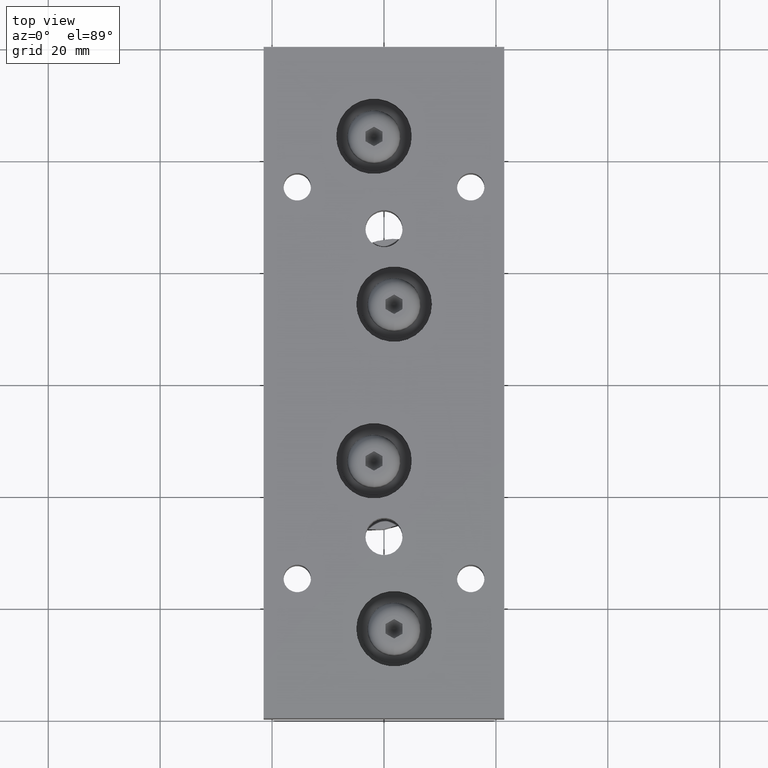
[diagram: clean part render]
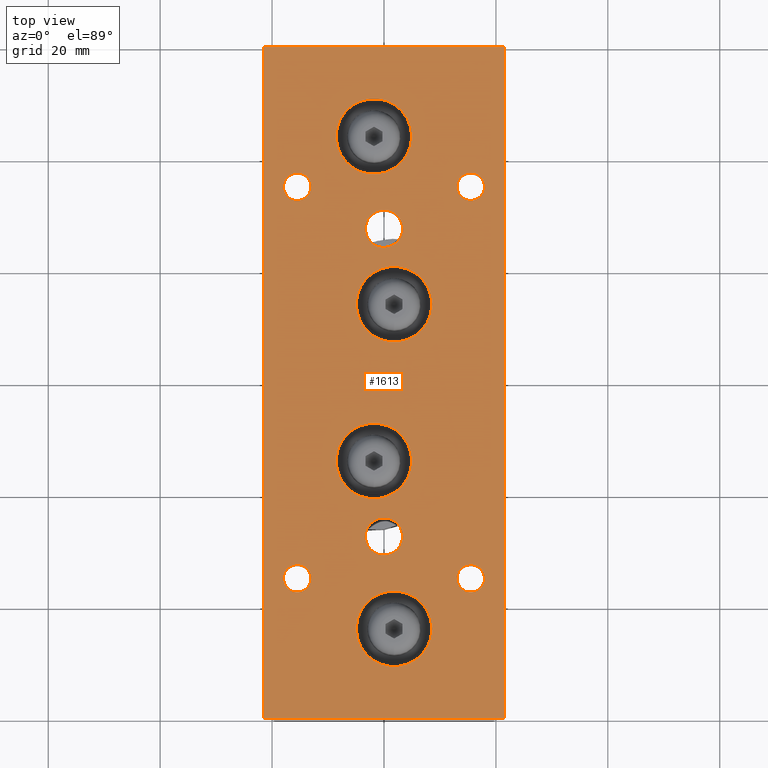
[diagram: same view with one face highlighted and labeled with its STEP entity id]
A machine part, top view. The second image highlights one B-rep face of the part: STEP entity #1613.
In plain terms, the highlighted planar face has unit normal (0, 0, 1).
Its self-contained STEP definition (entity closure, byte-faithful):
#147=LINE('',#2785,#253);
#149=LINE('',#2789,#255);
#151=LINE('',#2793,#257);
#153=LINE('',#2796,#259);
#253=VECTOR('',#2247,10.);
#255=VECTOR('',#2251,10.);
#257=VECTOR('',#2255,10.);
#259=VECTOR('',#2259,10.);
#394=FACE_BOUND('',#569,.T.);
#395=FACE_BOUND('',#570,.T.);
#396=FACE_BOUND('',#571,.T.);
#397=FACE_BOUND('',#572,.T.);
#398=FACE_BOUND('',#573,.T.);
#399=FACE_BOUND('',#574,.T.);
#400=FACE_BOUND('',#575,.T.);
#401=FACE_BOUND('',#576,.T.);
#402=FACE_BOUND('',#577,.T.);
#403=FACE_BOUND('',#578,.T.);
#451=FACE_OUTER_BOUND('',#568,.T.);
#568=EDGE_LOOP('',(#1217,#1218,#1219,#1220));
#569=EDGE_LOOP('',(#1221));
#570=EDGE_LOOP('',(#1222));
#571=EDGE_LOOP('',(#1223));
#572=EDGE_LOOP('',(#1224));
#573=EDGE_LOOP('',(#1225));
#574=EDGE_LOOP('',(#1226));
#575=EDGE_LOOP('',(#1227));
#576=EDGE_LOOP('',(#1228));
#577=EDGE_LOOP('',(#1229));
#578=EDGE_LOOP('',(#1230));
#684=CIRCLE('',#1910,6.75);
#688=CIRCLE('',#1917,6.75);
#692=CIRCLE('',#1924,6.75);
#696=CIRCLE('',#1931,6.75);
#698=CIRCLE('',#1935,2.4585);
#700=CIRCLE('',#1938,2.4585);
#702=CIRCLE('',#1941,2.4585);
#704=CIRCLE('',#1944,2.4585);
#706=CIRCLE('',#1947,3.3235);
#708=CIRCLE('',#1950,3.3235);
#778=VERTEX_POINT('',#2690);
#782=VERTEX_POINT('',#2703);
#786=VERTEX_POINT('',#2716);
#790=VERTEX_POINT('',#2729);
#792=VERTEX_POINT('',#2737);
#794=VERTEX_POINT('',#2743);
#796=VERTEX_POINT('',#2749);
#798=VERTEX_POINT('',#2755);
#800=VERTEX_POINT('',#2761);
#802=VERTEX_POINT('',#2767);
#808=VERTEX_POINT('',#2782);
#809=VERTEX_POINT('',#2784);
#810=VERTEX_POINT('',#2788);
#811=VERTEX_POINT('',#2792);
#918=EDGE_CURVE('',#778,#778,#684,.T.);
#924=EDGE_CURVE('',#782,#782,#688,.T.);
#930=EDGE_CURVE('',#786,#786,#692,.T.);
#936=EDGE_CURVE('',#790,#790,#696,.T.);
#940=EDGE_CURVE('',#792,#792,#698,.T.);
#943=EDGE_CURVE('',#794,#794,#700,.T.);
#946=EDGE_CURVE('',#796,#796,#702,.T.);
#949=EDGE_CURVE('',#798,#798,#704,.T.);
#952=EDGE_CURVE('',#800,#800,#706,.T.);
#955=EDGE_CURVE('',#802,#802,#708,.T.);
#963=EDGE_CURVE('',#809,#808,#147,.T.);
#965=EDGE_CURVE('',#810,#809,#149,.T.);
#967=EDGE_CURVE('',#811,#810,#151,.T.);
#969=EDGE_CURVE('',#808,#811,#153,.T.);
#1217=ORIENTED_EDGE('',*,*,#969,.T.);
#1218=ORIENTED_EDGE('',*,*,#967,.T.);
#1219=ORIENTED_EDGE('',*,*,#965,.T.);
#1220=ORIENTED_EDGE('',*,*,#963,.T.);
#1221=ORIENTED_EDGE('',*,*,#918,.T.);
#1222=ORIENTED_EDGE('',*,*,#924,.T.);
#1223=ORIENTED_EDGE('',*,*,#930,.T.);
#1224=ORIENTED_EDGE('',*,*,#936,.T.);
#1225=ORIENTED_EDGE('',*,*,#940,.T.);
#1226=ORIENTED_EDGE('',*,*,#943,.T.);
#1227=ORIENTED_EDGE('',*,*,#946,.T.);
#1228=ORIENTED_EDGE('',*,*,#949,.T.);
#1229=ORIENTED_EDGE('',*,*,#952,.T.);
#1230=ORIENTED_EDGE('',*,*,#955,.T.);
#1546=PLANE('',#1957);
#1613=ADVANCED_FACE('',(#451,#394,#395,#396,#397,#398,#399,#400,#401,#402,
#403),#1546,.T.);
#1910=AXIS2_PLACEMENT_3D('',#2691,#2140,#2141);
#1917=AXIS2_PLACEMENT_3D('',#2704,#2156,#2157);
#1924=AXIS2_PLACEMENT_3D('',#2717,#2172,#2173);
#1931=AXIS2_PLACEMENT_3D('',#2730,#2188,#2189);
#1935=AXIS2_PLACEMENT_3D('',#2738,#2198,#2199);
#1938=AXIS2_PLACEMENT_3D('',#2744,#2205,#2206);
#1941=AXIS2_PLACEMENT_3D('',#2750,#2212,#2213);
#1944=AXIS2_PLACEMENT_3D('',#2756,#2219,#2220);
#1947=AXIS2_PLACEMENT_3D('',#2762,#2226,#2227);
#1950=AXIS2_PLACEMENT_3D('',#2768,#2233,#2234);
#1957=AXIS2_PLACEMENT_3D('',#2797,#2260,#2261);
#2140=DIRECTION('center_axis',(0.,-1.,0.));
#2141=DIRECTION('ref_axis',(1.,0.,0.));
#2156=DIRECTION('center_axis',(0.,-1.,0.));
#2157=DIRECTION('ref_axis',(1.,0.,0.));
#2172=DIRECTION('center_axis',(0.,-1.,0.));
#2173=DIRECTION('ref_axis',(1.,0.,0.));
#2188=DIRECTION('center_axis',(0.,-1.,0.));
#2189=DIRECTION('ref_axis',(1.,0.,0.));
#2198=DIRECTION('center_axis',(0.,-1.,0.));
#2199=DIRECTION('ref_axis',(1.,0.,0.));
#2205=DIRECTION('center_axis',(0.,-1.,0.));
#2206=DIRECTION('ref_axis',(1.,0.,0.));
#2212=DIRECTION('center_axis',(0.,-1.,0.));
#2213=DIRECTION('ref_axis',(1.,0.,0.));
#2219=DIRECTION('center_axis',(0.,-1.,0.));
#2220=DIRECTION('ref_axis',(1.,0.,0.));
#2226=DIRECTION('center_axis',(0.,-1.,0.));
#2227=DIRECTION('ref_axis',(1.,0.,0.));
#2233=DIRECTION('center_axis',(0.,-1.,0.));
#2234=DIRECTION('ref_axis',(1.,0.,0.));
#2247=DIRECTION('',(1.85037170770859E-16,0.,-1.));
#2251=DIRECTION('',(1.,0.,-4.13106241720989E-16));
#2255=DIRECTION('',(-7.40148683083438E-17,0.,1.));
#2259=DIRECTION('',(-1.,0.,-4.13106241720988E-16));
#2260=DIRECTION('center_axis',(0.,1.,0.));
#2261=DIRECTION('ref_axis',(0.,0.,1.));
#2690=CARTESIAN_POINT('',(-8.55,7.5,14.));
#2691=CARTESIAN_POINT('Origin',(-1.8,7.5,14.));
#2703=CARTESIAN_POINT('',(-4.95,7.5,44.));
#2704=CARTESIAN_POINT('Origin',(1.8,7.5,44.));
#2716=CARTESIAN_POINT('',(-4.95,7.5,-14.));
#2717=CARTESIAN_POINT('Origin',(1.8,7.5,-14.));
#2729=CARTESIAN_POINT('',(-8.55,7.5,-44.));
#2730=CARTESIAN_POINT('Origin',(-1.8,7.5,-44.));
#2737=CARTESIAN_POINT('',(13.0415,7.5,35.));
#2738=CARTESIAN_POINT('Origin',(15.5,7.5,35.));
#2743=CARTESIAN_POINT('',(-17.9585,7.5,-35.));
#2744=CARTESIAN_POINT('Origin',(-15.5,7.5,-35.));
#2749=CARTESIAN_POINT('',(13.0415,7.5,-35.));
#2750=CARTESIAN_POINT('Origin',(15.5,7.5,-35.));
#2755=CARTESIAN_POINT('',(-17.9585,7.5,35.));
#2756=CARTESIAN_POINT('Origin',(-15.5,7.5,35.));
#2761=CARTESIAN_POINT('',(-3.32350000000001,7.5,27.5));
#2762=CARTESIAN_POINT('Origin',(-6.47630097698008E-15,7.5,27.5));
#2767=CARTESIAN_POINT('',(-3.32350000000001,7.5,-27.5));
#2768=CARTESIAN_POINT('Origin',(-6.47630097698008E-15,7.5,-27.5));
#2782=CARTESIAN_POINT('',(21.5,7.5,-60.));
#2784=CARTESIAN_POINT('',(21.5,7.5,60.));
#2785=CARTESIAN_POINT('',(21.5,7.5,60.));
#2788=CARTESIAN_POINT('',(-21.5,7.5,60.));
#2789=CARTESIAN_POINT('',(-21.5,7.5,60.));
#2792=CARTESIAN_POINT('',(-21.5,7.5,-60.));
#2793=CARTESIAN_POINT('',(-21.5,7.5,-60.));
#2796=CARTESIAN_POINT('',(21.5,7.5,-60.));
#2797=CARTESIAN_POINT('Origin',(-8.88178419700125E-15,7.5,-8.88178419700125E-15));